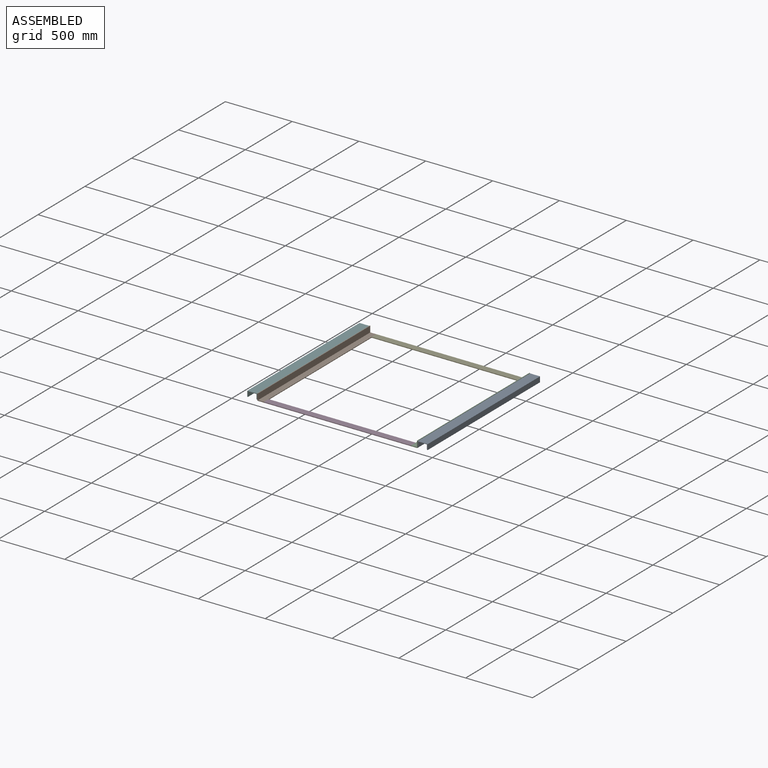
[diagram: assembled view]
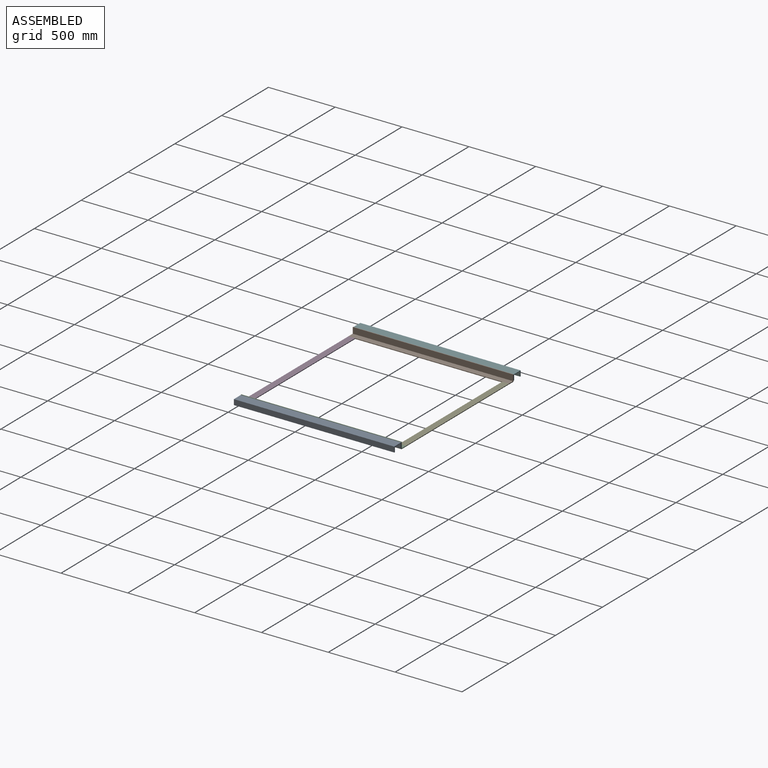
[diagram: assembled view, second angle]
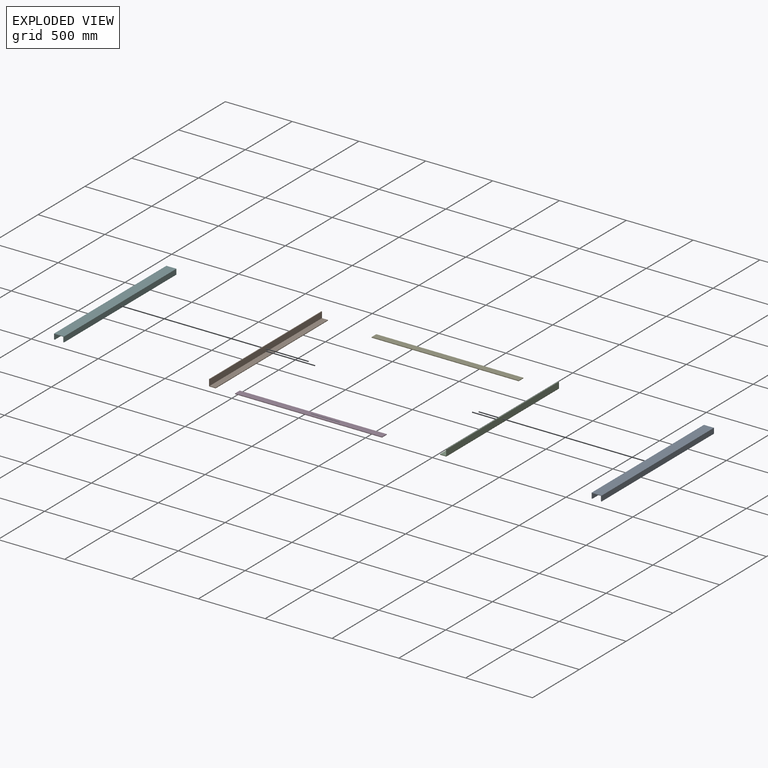
[diagram: exploded view]
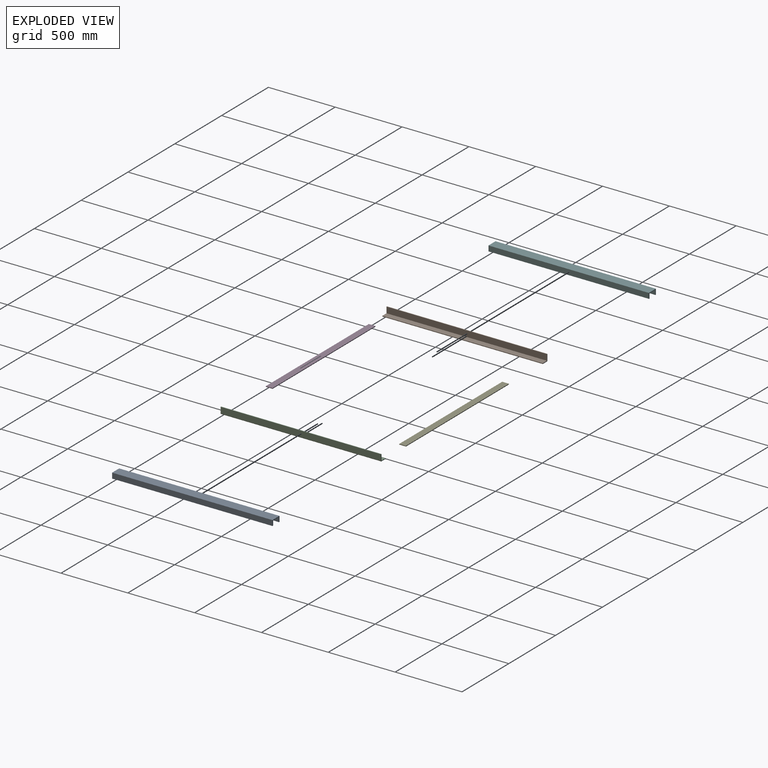
[diagram: exploded view, second angle]
ASSEMBLY  parts=6 mates=5
PART A: 10 faces, bbox 75x1200x40 mm
  f0: plane 1200x40mm, normal (-1,0,0), area 48000mm2, adj f1,f7,f8,f9
  f1: plane 1200x75mm, normal (0,0,-1), area 90000mm2, adj f0,f2,f8,f9
  f2: plane 1200x40mm, normal (1,0,0), area 48000mm2, adj f1,f3,f8,f9
  f3: plane 1200x6.01mm, normal (0,0,1), area 7212mm2, adj f2,f4,f8,f9
  f4: plane 1200x36.2mm, normal (-1,0,0), area 43440mm2, adj f3,f5,f8,f9
  f5: plane 1200x62.89mm, normal (0,0,1), area 75468mm2, adj f4,f6,f8,f9
  f6: plane 1200x36.2mm, normal (1,0,0), area 43440mm2, adj f5,f7,f8,f9
  f7: plane 1200x6.1mm, normal (0,0,1), area 7320mm2, adj f0,f6,f8,f9
  f8: plane 75x40mm, normal (0,-1,0), area 723.4mm2, adj f0,f1,f2,f3,f4,f5,f6,f7
  f9: plane 75x40mm, normal (0,1,0), area 723.4mm2, adj f0,f1,f2,f3,f4,f5,f6,f7
PART B: 9 faces, bbox 50x1200x50 mm
  f0: plane 1200x45mm, normal (-1,0,0), area 54000mm2, adj f1,f5,f6,f7
  f1: plane 1200x45mm, normal (0,0,1), area 54000mm2, adj f0,f2,f6,f7
  f2: plane 1200x5mm, normal (-1,0,0), area 6000mm2, adj f1,f3,f6,f7
  f3: plane 1200x45mm, normal (0,0,-1), area 54000mm2, adj f2,f6,f7,f8
  f4: plane 1200x45mm, normal (1,0,0), area 54000mm2, adj f5,f6,f7,f8
  f5: plane 1200x5mm, normal (0,0,1), area 6000mm2, adj f0,f4,f6,f7
  f6: plane 50x50mm, normal (0,-1,0), area 469.6mm2, adj f0,f1,f2,f3,f4,f5,f8
  f7: plane 50x50mm, normal (0,1,0), area 469.6mm2, adj f0,f1,f2,f3,f4,f5,f8
  f8: cylinder r=5mm len=1200mm, axis (0,-1,0), area 9424.8mm2, adj f3,f4,f6,f7
PART C: same geometry as B
PART D: 6 faces, bbox 50x1100x5 mm
  f0: plane 1100x50mm, normal (0,0,-1), area 55000mm2, adj f1,f3,f4,f5
  f1: plane 1100x5mm, normal (1,0,0), area 5500mm2, adj f0,f2,f4,f5
  f2: plane 1100x50mm, normal (0,0,1), area 55000mm2, adj f1,f3,f4,f5
  f3: plane 1100x5mm, normal (-1,0,0), area 5500mm2, adj f0,f2,f4,f5
  f4: plane 50x5mm, normal (0,-1,0), area 250mm2, adj f0,f1,f2,f3
  f5: plane 50x5mm, normal (0,1,0), area 250mm2, adj f0,f1,f2,f3
PART E: same geometry as D
PART F: same geometry as A
PLACE A rot(axis=(0,-1,0),180deg) t=(419.27,712.71,-84.16)mm
PLACE B rot(axis=(0,0,1),180deg) t=(-815.73,-487.29,-86.66)mm
PLACE C t=(379.27,712.71,-86.66)mm
PLACE D rot(axis=(0,0,1),90deg) t=(-768.23,-462.29,-109.16)mm
PLACE E rot(axis=(0,0,1),90deg) t=(-768.23,687.71,-109.16)mm
PLACE F rot(axis=(0,1,0),180deg) t=(-855.73,712.71,-84.16)mm
MATE fastened F.f0 <-> B.f4  axis (1,0,0) through (-818.23,712.71,-84.16)mm
MATE fastened A.f2 <-> C.f4  axis (-1,0,0) through (381.77,712.71,-84.16)mm
MATE fastened E.f4 <-> C.f2  axis (1,0,0) through (331.77,712.71,-106.66)mm
MATE fastened B.f2 <-> E.f5  axis (1,0,0) through (-768.23,712.71,-106.66)mm
MATE fastened D.f4 <-> C.f2  axis (1,0,0) through (331.77,-487.29,-106.66)mm
